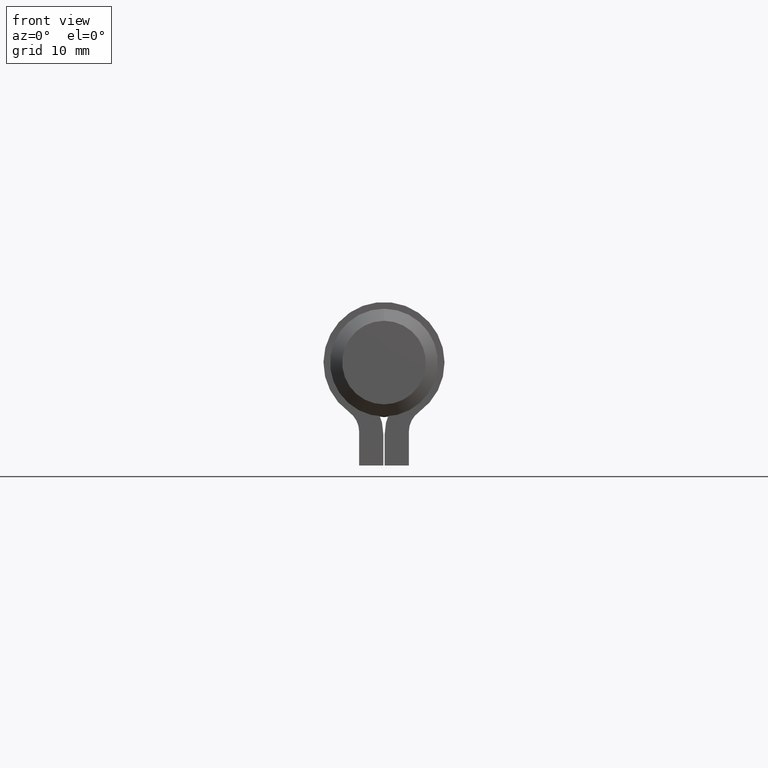
[diagram: clean part render]
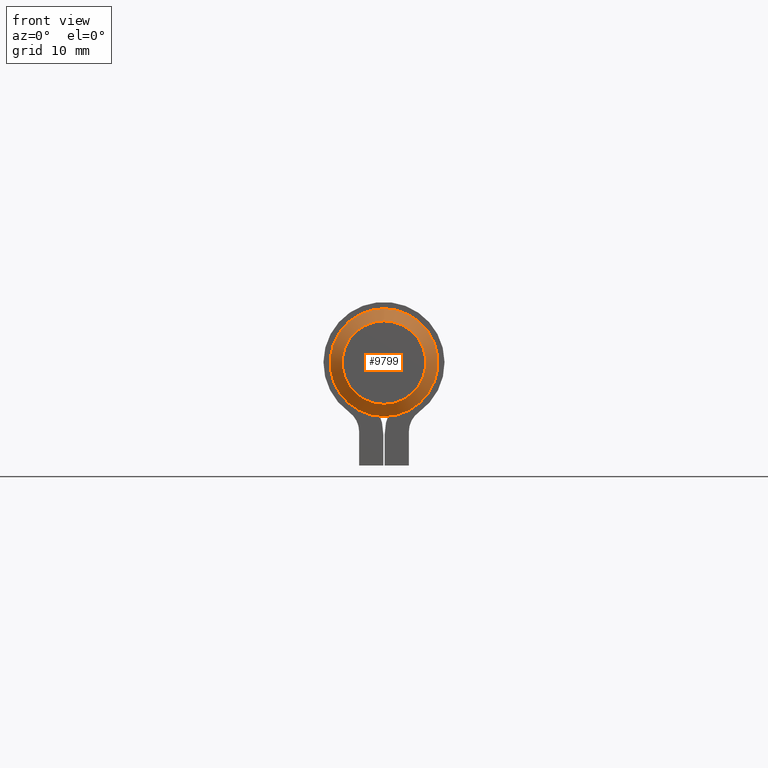
[diagram: same view with one face highlighted and labeled with its STEP entity id]
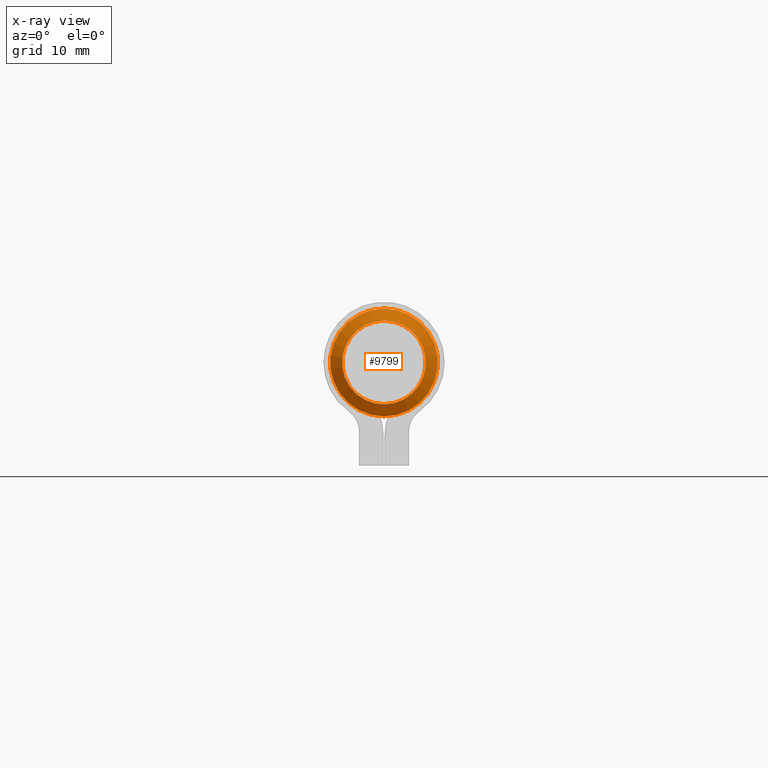
[diagram: x-ray of the same camera — body ghosted, the highlighted face saturated]
A machine part, front view. The second image highlights one B-rep face of the part: STEP entity #9799.
The next image is the same camera in x-ray: the body ghosted, the highlighted face saturated — about 0% of this face is hidden behind the body in this view.
In plain terms, the highlighted conical surface has half-angle 45 deg.
Its self-contained STEP definition (entity closure, byte-faithful):
#506 = CONICAL_SURFACE ( 'NONE', #4918, 4.450000000000002842, 0.7853981633974482790 ) ;
#592 = AXIS2_PLACEMENT_3D ( 'NONE', #7396, #637, #1078 ) ;
#637 = DIRECTION ( 'NONE',  ( -0.000000000000000000, 1.000000000000000000, -0.000000000000000000 ) ) ;
#813 = CARTESIAN_POINT ( 'NONE',  ( 3.469446951953614189E-15, -28.00000000000000355, 0.000000000000000000 ) ) ;
#1078 = DIRECTION ( 'NONE',  ( 0.000000000000000000, 0.000000000000000000, 1.000000000000000000 ) ) ;
#1682 = CIRCLE ( 'NONE', #592, 4.450000000000002842 ) ;
#1758 = ORIENTED_EDGE ( 'NONE', *, *, #12472, .F. ) ;
#2377 = VERTEX_POINT ( 'NONE', #13346 ) ;
#4176 = DIRECTION ( 'NONE',  ( 0.000000000000000000, 0.000000000000000000, 1.000000000000000000 ) ) ;
#4918 = AXIS2_PLACEMENT_3D ( 'NONE', #813, #11050, #14252 ) ;
#7396 = CARTESIAN_POINT ( 'NONE',  ( 3.469446951953614189E-15, -28.00000000000000355, 0.000000000000000000 ) ) ;
#7514 = DIRECTION ( 'NONE',  ( 0.000000000000000000, -1.000000000000000000, 0.000000000000000000 ) ) ;
#7571 = FACE_BOUND ( 'NONE', #9229, .T. ) ;
#8543 = ORIENTED_EDGE ( 'NONE', *, *, #14668, .F. ) ;
#9105 = VERTEX_POINT ( 'NONE', #14643 ) ;
#9178 = FACE_OUTER_BOUND ( 'NONE', #13503, .T. ) ;
#9229 = EDGE_LOOP ( 'NONE', ( #1758 ) ) ;
#9799 = ADVANCED_FACE ( 'NONE', ( #7571, #9178 ), #506, .T. ) ;
#10223 = CIRCLE ( 'NONE', #12441, 3.450000000000008615 ) ;
#11050 = DIRECTION ( 'NONE',  ( -0.000000000000000000, 1.000000000000000000, -0.000000000000000000 ) ) ;
#12441 = AXIS2_PLACEMENT_3D ( 'NONE', #13168, #7514, #4176 ) ;
#12472 = EDGE_CURVE ( 'NONE', #9105, #9105, #10223, .T. ) ;
#13168 = CARTESIAN_POINT ( 'NONE',  ( 3.469446951953614189E-15, -28.99999999999999645, 0.000000000000000000 ) ) ;
#13346 = CARTESIAN_POINT ( 'NONE',  ( 3.469446951953614189E-15, -28.00000000000000355, 4.450000000000002842 ) ) ;
#13503 = EDGE_LOOP ( 'NONE', ( #8543 ) ) ;
#14252 = DIRECTION ( 'NONE',  ( 0.000000000000000000, 0.000000000000000000, 1.000000000000000000 ) ) ;
#14643 = CARTESIAN_POINT ( 'NONE',  ( 3.469446951953614189E-15, -28.99999999999999645, 3.450000000000008615 ) ) ;
#14668 = EDGE_CURVE ( 'NONE', #2377, #2377, #1682, .T. ) ;